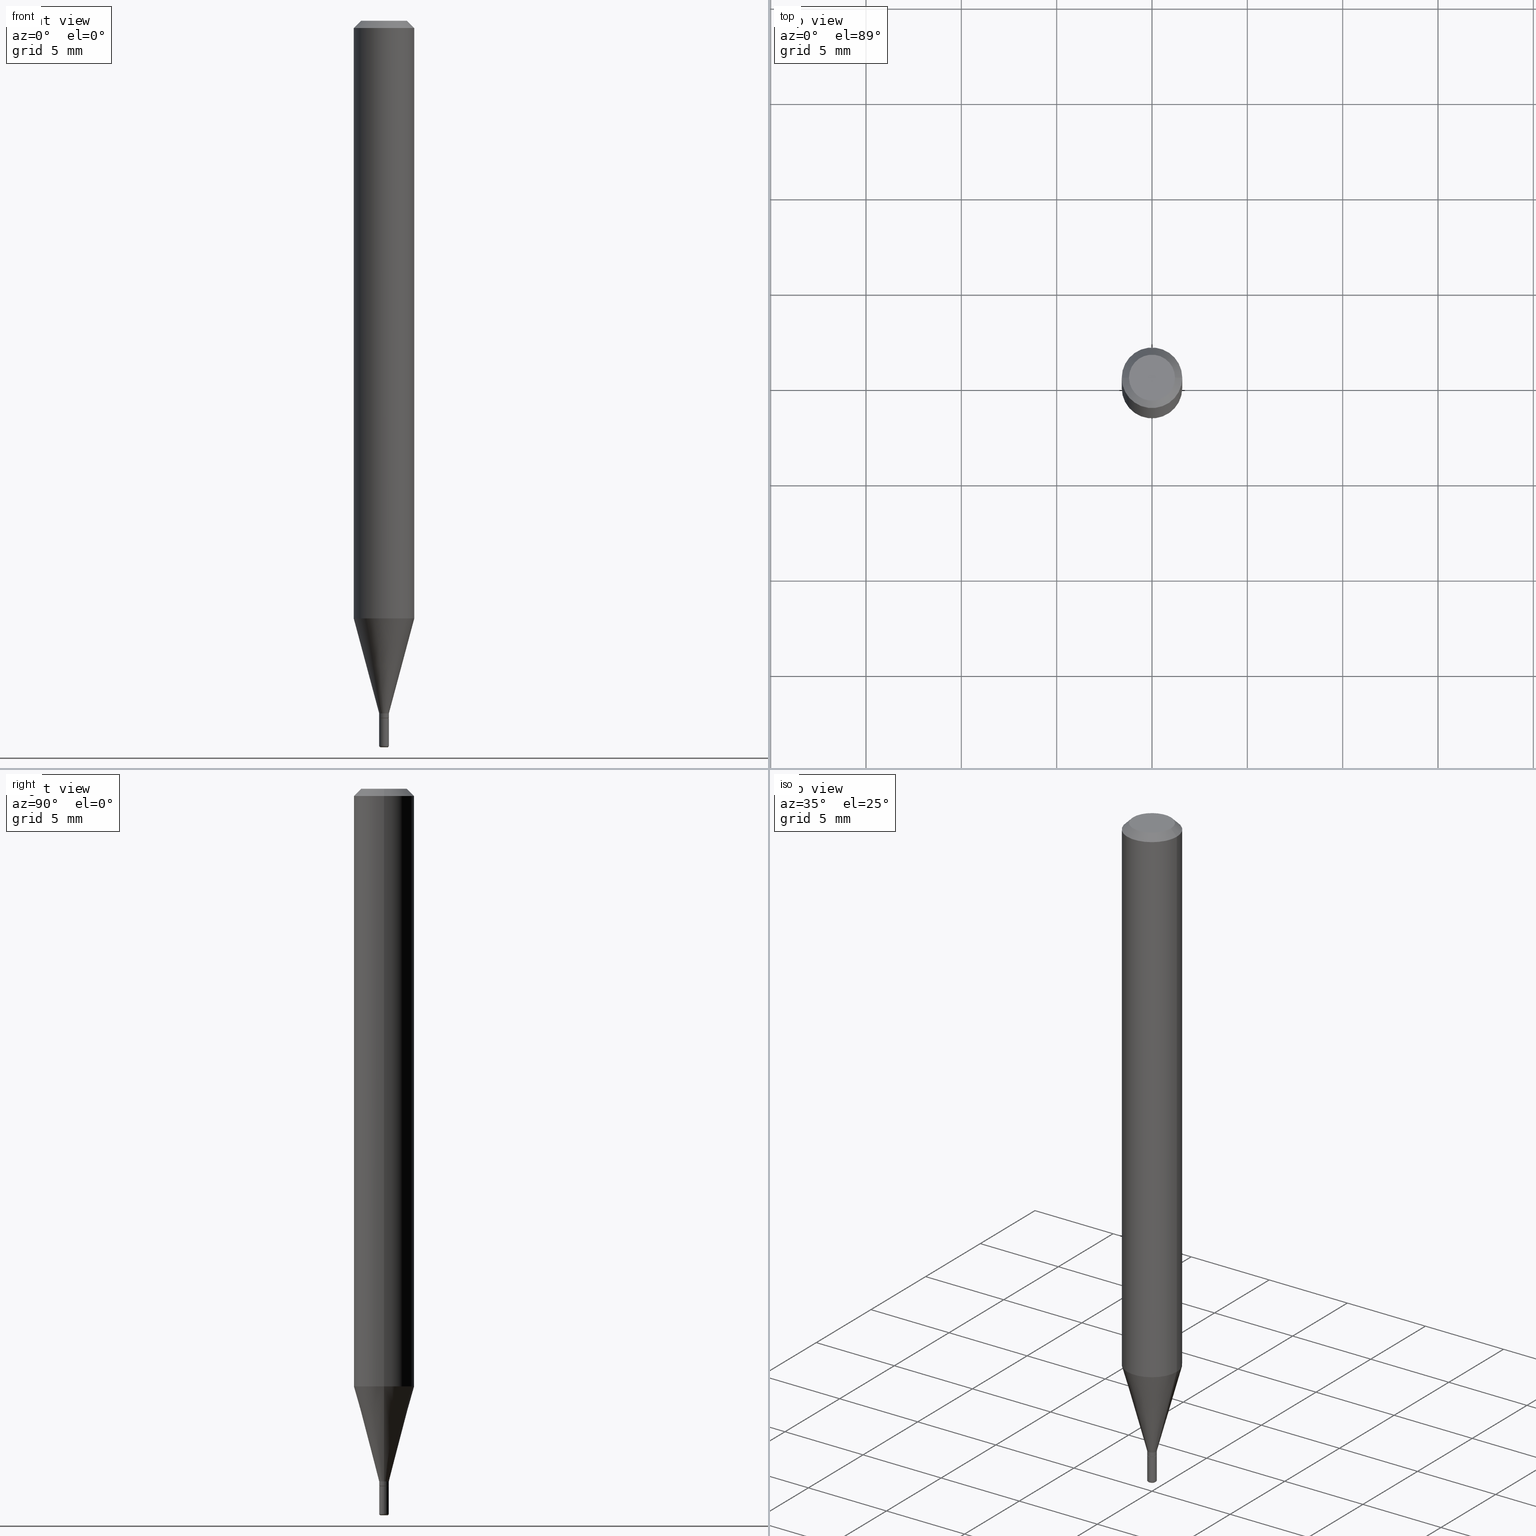
[diagram: canonical four-view strip — front | top / right | iso, engineering-drawing reading convention]
A machine part, canonical four-view strip (front | top / right | iso — engineering-drawing reading convention). The complete STEP part file that produces these views, byte-faithful:
ISO-10303-21;
HEADER;
FILE_DESCRIPTION (( 'STEP AP203' ),
    '1' );
FILE_NAME ('08644.STEP',
    '2024-02-29T20:08:30',
    ( '' ),
    ( '' ),
    'SwSTEP 2.0',
    'SolidWorks 2023',
    '' );
FILE_SCHEMA (( 'CONFIG_CONTROL_DESIGN' ));
ENDSEC;

DATA;
#1 = CARTESIAN_POINT ( 'NONE',  ( 0.06250000000000001388, -4.745158230013424344E-15, -1.234067332602633682 ) ) ;
#2 = CALENDAR_DATE ( 2024, 29, 2 ) ;
#3 = CYLINDRICAL_SURFACE ( 'NONE', #47, 0.009999999999999982861 ) ;
#4 = DIRECTION ( 'NONE',  ( -2.445468806185136597E-29, 3.491481338843145583E-15, 1.000000000000000000 ) ) ;
#5 = AXIS2_PLACEMENT_3D ( 'NONE', #376, #278, #513 ) ;
#6 = ORIENTED_EDGE ( 'NONE', *, *, #403, .T. ) ;
#7 = CC_DESIGN_PERSON_AND_ORGANIZATION_ASSIGNMENT ( #297, #101, ( #53 ) ) ;
#8 = FACE_OUTER_BOUND ( 'NONE', #497, .T. ) ;
#9 = PERSON_AND_ORGANIZATION ( #19, #449 ) ;
#10 = APPLICATION_CONTEXT ( 'configuration controlled 3d designs of mechanical parts and assemblies' ) ;
#11 = ADVANCED_FACE ( 'NONE', ( #314 ), #491, .T. ) ;
#12 = AXIS2_PLACEMENT_3D ( 'NONE', #499, #380, #106 ) ;
#13 = APPROVAL_DATE_TIME ( #253, #518 ) ;
#14 = PERSON_AND_ORGANIZATION_ROLE ( 'classification_officer' ) ;
#15 = ADVANCED_FACE ( 'NONE', ( #144 ), #205, .T. ) ;
#16 = DIRECTION ( 'NONE',  ( 0.2588190451025205729, 1.565188264969627490E-15, 0.9659258262890682012 ) ) ;
#17 = CLOSED_SHELL ( 'NONE', ( #25, #15, #480, #133, #32, #43, #460, #510, #324, #139, #265, #366 ) ) ;
#18 = ORIENTED_EDGE ( 'NONE', *, *, #337, .T. ) ;
#19 = PERSON ( 'UNSPECIFIED', 'UNSPECIFIED', 'UNSPECIFIED', ('UNSPECIFIED'), ('UNSPECIFIED'), ('UNSPECIFIED') ) ;
#20 = LINE ( 'NONE', #457, #289 ) ;
#21 = EDGE_CURVE ( 'NONE', #242, #35, #110, .T. ) ;
#22 = DIRECTION ( 'NONE',  ( 1.000000000000000000, -6.982962677686332186E-15, 0.000000000000000000 ) ) ;
#23 =( CONVERSION_BASED_UNIT ( 'INCH', #427 ) LENGTH_UNIT ( ) NAMED_UNIT ( #504 ) );
#24 = ORIENTED_EDGE ( 'NONE', *, *, #215, .F. ) ;
#25 = ADVANCED_FACE ( 'NONE', ( #388 ), #426, .T. ) ;
#26 = CIRCLE ( 'NONE', #498, 0.06250000000000000000 ) ;
#27 = FACE_OUTER_BOUND ( 'NONE', #358, .T. ) ;
#28 = DIRECTION ( 'NONE',  ( -0.7071067811864260033, 7.493145998869915554E-15, 0.7071067811866689201 ) ) ;
#29 = VERTEX_POINT ( 'NONE', #73 ) ;
#30 = DIRECTION ( 'NONE',  ( -2.445468806185136597E-29, 3.491481338843145583E-15, 1.000000000000000000 ) ) ;
#31 = VERTEX_POINT ( 'NONE', #418 ) ;
#32 = ADVANCED_FACE ( 'NONE', ( #238 ), #448, .T. ) ;
#33 = CARTESIAN_POINT ( 'NONE',  ( 3.668203209277704895E-29, -5.237222008264718177E-15, -1.500000000000000222 ) ) ;
#34 = LINE ( 'NONE', #515, #180 ) ;
#35 = VERTEX_POINT ( 'NONE', #508 ) ;
#36 = AXIS2_PLACEMENT_3D ( 'NONE', #350, #484, #125 ) ;
#37 = CIRCLE ( 'NONE', #12, 0.009999999999999981126 ) ;
#38 = DIRECTION ( 'NONE',  ( -0.2588190451025205729, 5.211531920934544731E-15, 0.9659258262890682012 ) ) ;
#39 = CIRCLE ( 'NONE', #237, 0.06250000000000000000 ) ;
#40 = ORIENTED_EDGE ( 'NONE', *, *, #21, .T. ) ;
#41 = LINE ( 'NONE', #159, #46 ) ;
#42 = EDGE_LOOP ( 'NONE', ( #63, #6 ) ) ;
#43 = ADVANCED_FACE ( 'NONE', ( #225 ), #371, .T. ) ;
#44 = EDGE_CURVE ( 'NONE', #503, #420, #462, .T. ) ;
#45 = PLANE ( 'NONE',  #382 ) ;
#46 = VECTOR ( 'NONE', #390, 39.37007874015748143 ) ;
#47 = AXIS2_PLACEMENT_3D ( 'NONE', #357, #115, #438 ) ;
#48 = APPROVAL_ROLE ( '' ) ;
#49 = EDGE_CURVE ( 'NONE', #503, #199, #132, .T. ) ;
#50 = APPROVAL_DATE_TIME ( #417, #283 ) ;
#51 = DIRECTION ( 'NONE',  ( 1.000000000000000000, -6.982962677686266711E-15, 4.876176775795935793E-29 ) ) ;
#52 = CLOSED_SHELL ( 'NONE', ( #221, #197, #98, #173, #11, #121 ) ) ;
#53 = PRODUCT_DEFINITION_FORMATION_WITH_SPECIFIED_SOURCE ( 'ANY', '', #162, .NOT_KNOWN. ) ;
#54 = CALENDAR_DATE ( 2024, 29, 2 ) ;
#55 = DIRECTION ( 'NONE',  ( -2.445468806185136597E-29, 3.491481338843145583E-15, 1.000000000000000000 ) ) ;
#56 = DIRECTION ( 'NONE',  ( 1.000000000000000000, -6.982962677686266711E-15, 4.876176775795935793E-29 ) ) ;
#57 = LINE ( 'NONE', #370, #363 ) ;
#58 = LINE ( 'NONE', #220, #213 ) ;
#59 = DIRECTION ( 'NONE',  ( -2.445468806185136877E-29, 3.491481338843145188E-15, 1.000000000000000000 ) ) ;
#60 = ORIENTED_EDGE ( 'NONE', *, *, #211, .F. ) ;
#61 = DIRECTION ( 'NONE',  ( 1.000000000000000000, -6.982962677686266711E-15, 4.852736867747365086E-29 ) ) ;
#62 = AXIS2_PLACEMENT_3D ( 'NONE', #114, #30, #317 ) ;
#63 = ORIENTED_EDGE ( 'NONE', *, *, #271, .T. ) ;
#64 = CARTESIAN_POINT ( 'NONE',  ( -0.009999999999999981126, -4.393198946888829488E-15, -1.429999999999999938 ) ) ;
#65 = DIRECTION ( 'NONE',  ( 1.000000000000000000, -6.982962677686267499E-15, 4.876176775795936353E-29 ) ) ;
#66 = CARTESIAN_POINT ( 'NONE',  ( 3.668203209277704895E-29, -5.237222008264718177E-15, -1.500000000000000222 ) ) ;
#67 = CARTESIAN_POINT ( 'NONE',  ( 3.497020392844745759E-29, -4.992818314545698211E-15, -1.429999999999999938 ) ) ;
#68 = FACE_OUTER_BOUND ( 'NONE', #234, .T. ) ;
#69 = ORIENTED_EDGE ( 'NONE', *, *, #393, .T. ) ;
#70 = ORIENTED_EDGE ( 'NONE', *, *, #178, .F. ) ;
#71 = VECTOR ( 'NONE', #188, 39.37007874015748143 ) ;
#72 = AXIS2_PLACEMENT_3D ( 'NONE', #282, #245, #56 ) ;
#73 = CARTESIAN_POINT ( 'NONE',  ( -0.009999999999999970718, -5.056186072515150215E-15, -1.497000000000000108 ) ) ;
#74 = CARTESIAN_POINT ( 'NONE',  ( 3.660866802859150328E-29, -5.226747564248189155E-15, -1.497000000000000108 ) ) ;
#75 = ORIENTED_EDGE ( 'NONE', *, *, #302, .T. ) ;
#76 = DIRECTION ( 'NONE',  ( -2.445468806185136597E-29, 3.491481338843145583E-15, 1.000000000000000000 ) ) ;
#77 = DIRECTION ( 'NONE',  ( -2.445468806185136597E-29, 3.491481338843145583E-15, 1.000000000000000000 ) ) ;
#78 = ORIENTED_EDGE ( 'NONE', *, *, #269, .F. ) ;
#79 = DIRECTION ( 'NONE',  ( -2.445468806185136877E-29, 3.491481338843145188E-15, 1.000000000000000000 ) ) ;
#80 = PRODUCT_DEFINITION_SHAPE ( 'NONE', 'NONE',  #379 ) ;
#81 = DIRECTION ( 'NONE',  ( -1.000000000000000000, 6.982962677686265922E-15, -4.876176775795935793E-29 ) ) ;
#82 = VERTEX_POINT ( 'NONE', #481 ) ;
#83 = CARTESIAN_POINT ( 'NONE',  ( -0.009999999999999982861, 7.105427357600989681E-17, -4.918935090254897514E-31 ) ) ;
#84 = CIRCLE ( 'NONE', #62, 0.009499999999999984152 ) ;
#85 = DIRECTION ( 'NONE',  ( 2.438088387897960049E-29, -3.491481338843145188E-15, -1.000000000000000000 ) ) ;
#86 = EDGE_CURVE ( 'NONE', #29, #199, #414, .T. ) ;
#87 = PLANE ( 'NONE',  #475 ) ;
#88 = PERSON_AND_ORGANIZATION_ROLE ( 'creator' ) ;
#89 = CC_DESIGN_PERSON_AND_ORGANIZATION_ASSIGNMENT ( #95, #14, ( #327 ) ) ;
#90 = UNCERTAINTY_MEASURE_WITH_UNIT (LENGTH_MEASURE( 1.000000000000000082E-05 ), #23, 'distance_accuracy_value', 'NONE');
#91 = CONICAL_SURFACE ( 'NONE', #295, 0.009499999999999984152, 0.7853981633972765275 ) ;
#92 = AXIS2_PLACEMENT_3D ( 'NONE', #389, #392, #166 ) ;
#93 = VERTEX_POINT ( 'NONE', #136 ) ;
#94 = COORDINATED_UNIVERSAL_TIME_OFFSET ( 5, 0, .BEHIND. ) ;
#95 = PERSON_AND_ORGANIZATION ( #19, #449 ) ;
#96 = ORIENTED_EDGE ( 'NONE', *, *, #260, .F. ) ;
#97 = DIRECTION ( 'NONE',  ( 1.000000000000000000, -6.982962677686246989E-15, 0.000000000000000000 ) ) ;
#98 = ADVANCED_FACE ( 'NONE', ( #330 ), #45, .F. ) ;
#99 = EDGE_LOOP ( 'NONE', ( #116, #203, #351, #485 ) ) ;
#100 = CARTESIAN_POINT ( 'NONE',  ( -6.680649051745406845E-45, 9.538196290434862081E-31, 2.731847993664263218E-16 ) ) ;
#101 = PERSON_AND_ORGANIZATION_ROLE ( 'design_supplier' ) ;
#102 = DIRECTION ( 'NONE',  ( 0.7071067811864260033, -2.468850131080984628E-15, 0.7071067811866689201 ) ) ;
#103 = CARTESIAN_POINT ( 'NONE',  ( -0.06250000000000000000, 3.840629472727455270E-16, -0.01499999999999970281 ) ) ;
#104 = APPROVAL ( #505, 'UNSPECIFIED' ) ;
#105 = ORIENTED_EDGE ( 'NONE', *, *, #231, .F. ) ;
#106 = DIRECTION ( 'NONE',  ( 1.000000000000000000, -6.982962677686249356E-15, 0.000000000000000000 ) ) ;
#107 = CIRCLE ( 'NONE', #250, 0.009999999999999984596 ) ;
#108 = CC_DESIGN_APPROVAL ( #518, ( #327 ) ) ;
#109 = CALENDAR_DATE ( 2024, 29, 2 ) ;
#110 = LINE ( 'NONE', #158, #255 ) ;
#111 = LINE ( 'NONE', #459, #71 ) ;
#112 = ORIENTED_EDGE ( 'NONE', *, *, #413, .T. ) ;
#113 = DIRECTION ( 'NONE',  ( -2.445468806185136597E-29, 3.491481338843145583E-15, 1.000000000000000000 ) ) ;
#114 = CARTESIAN_POINT ( 'NONE',  ( 3.521475080906597305E-29, -5.027733127934130649E-15, -1.440000000000000169 ) ) ;
#115 = DIRECTION ( 'NONE',  ( -2.445468806185136597E-29, 3.491481338843145583E-15, 1.000000000000000000 ) ) ;
#116 = ORIENTED_EDGE ( 'NONE', *, *, #501, .T. ) ;
#117 = ORIENTED_EDGE ( 'NONE', *, *, #21, .F. ) ;
#118 = COORDINATED_UNIVERSAL_TIME_OFFSET ( 5, 0, .BEHIND. ) ;
#119 = CARTESIAN_POINT ( 'NONE',  ( 3.497020392844745759E-29, -4.992818314545698211E-15, -1.429999999999999938 ) ) ;
#120 = ORIENTED_EDGE ( 'NONE', *, *, #424, .F. ) ;
#121 = ADVANCED_FACE ( 'NONE', ( #395 ), #87, .F. ) ;
#122 = CIRCLE ( 'NONE', #487, 0.002999999999999970572 ) ;
#123 = VECTOR ( 'NONE', #128, 39.37007874015748143 ) ;
#124 = DIRECTION ( 'NONE',  ( 1.000000000000000000, -6.982962677686246989E-15, 0.000000000000000000 ) ) ;
#125 = DIRECTION ( 'NONE',  ( 1.000000000000000000, -6.982962677686266711E-15, 4.852736867747365086E-29 ) ) ;
#126 = ORIENTED_EDGE ( 'NONE', *, *, #169, .T. ) ;
#127 = DIRECTION ( 'NONE',  ( -2.445468806185136597E-29, 3.491481338843145583E-15, 1.000000000000000000 ) ) ;
#128 = DIRECTION ( 'NONE',  ( 0.7071067811865479058, -7.319954787623257623E-15, -0.7071067811865471286 ) ) ;
#129 = ORIENTED_EDGE ( 'NONE', *, *, #369, .T. ) ;
#130 =( NAMED_UNIT ( * ) PLANE_ANGLE_UNIT ( ) SI_UNIT ( $, .RADIAN. ) );
#131 = CARTESIAN_POINT ( 'NONE',  ( 3.017873166611838401E-29, -4.308723062658033463E-15, -1.234067332602633682 ) ) ;
#132 = CIRCLE ( 'NONE', #299, 0.002999999999999970572 ) ;
#133 = ADVANCED_FACE ( 'NONE', ( #365 ), #458, .T. ) ;
#134 = CARTESIAN_POINT ( 'NONE',  ( 3.521475080906597305E-29, -5.027733127934130649E-15, -1.440000000000000169 ) ) ;
#135 = DATE_AND_TIME ( #488, #296 ) ;
#136 = CARTESIAN_POINT ( 'NONE',  ( -0.04750000000000000749, 3.578768372314221353E-16, 2.731847993664239060E-16 ) ) ;
#137 = AXIS2_PLACEMENT_3D ( 'NONE', #33, #183, #22 ) ;
#138 =( GEOMETRIC_REPRESENTATION_CONTEXT ( 3 ) GLOBAL_UNCERTAINTY_ASSIGNED_CONTEXT ( ( #90 ) ) GLOBAL_UNIT_ASSIGNED_CONTEXT ( ( #23, #130, #243 ) ) REPRESENTATION_CONTEXT ( 'NONE', 'WORKASPACE' ) );
#139 = ADVANCED_FACE ( 'NONE', ( #8 ), #248, .F. ) ;
#140 = CYLINDRICAL_SURFACE ( 'NONE', #425, 0.009999999999999984596 ) ;
#141 = CC_DESIGN_SECURITY_CLASSIFICATION ( #327, ( #53 ) ) ;
#142 = VERTEX_POINT ( 'NONE', #304 ) ;
#143 = LINE ( 'NONE', #103, #217 ) ;
#144 = FACE_OUTER_BOUND ( 'NONE', #423, .T. ) ;
#145 = FACE_OUTER_BOUND ( 'NONE', #468, .T. ) ;
#146 = ORIENTED_EDGE ( 'NONE', *, *, #86, .T. ) ;
#147 = CIRCLE ( 'NONE', #367, 0.009999999999999970718 ) ;
#148 = AXIS2_PLACEMENT_3D ( 'NONE', #226, #377, #419 ) ;
#149 = CARTESIAN_POINT ( 'NONE',  ( 0.000000000000000000, 0.000000000000000000, 0.000000000000000000 ) ) ;
#150 = DIRECTION ( 'NONE',  ( -2.445468806185136597E-29, 3.491481338843145583E-15, 1.000000000000000000 ) ) ;
#151 = ORIENTED_EDGE ( 'NONE', *, *, #153, .T. ) ;
#152 = LINE ( 'NONE', #83, #346 ) ;
#153 = EDGE_CURVE ( 'NONE', #310, #214, #184, .T. ) ;
#154 = ORIENTED_EDGE ( 'NONE', *, *, #294, .F. ) ;
#155 = APPROVAL_ROLE ( '' ) ;
#156 = FACE_OUTER_BOUND ( 'NONE', #42, .T. ) ;
#157 = ORIENTED_EDGE ( 'NONE', *, *, #445, .F. ) ;
#158 = CARTESIAN_POINT ( 'NONE',  ( 0.06250000000000000000, -4.364351673553916694E-16, 3.047610484872459871E-30 ) ) ;
#159 = CARTESIAN_POINT ( 'NONE',  ( 0.009999999999999982861, -6.982962677686255864E-17, 4.876176775795927210E-31 ) ) ;
#160 = ORIENTED_EDGE ( 'NONE', *, *, #271, .F. ) ;
#161 = AXIS2_PLACEMENT_3D ( 'NONE', #514, #353, #124 ) ;
#162 = PRODUCT ( '08644', '08644', '', ( #232 ) ) ;
#163 = ORIENTED_EDGE ( 'NONE', *, *, #360, .F. ) ;
#164 = DIRECTION ( 'NONE',  ( 1.000000000000000000, -6.982962677686256455E-15, 4.883557194083109538E-29 ) ) ;
#165 = ORIENTED_EDGE ( 'NONE', *, *, #153, .F. ) ;
#166 = DIRECTION ( 'NONE',  ( 1.000000000000000000, 0.000000000000000000, 0.000000000000000000 ) ) ;
#167 = DIRECTION ( 'NONE',  ( -2.445468806185136597E-29, 3.491481338843145583E-15, 1.000000000000000000 ) ) ;
#168 = CC_DESIGN_PERSON_AND_ORGANIZATION_ASSIGNMENT ( #490, #88, ( #379 ) ) ;
#169 = EDGE_CURVE ( 'NONE', #142, #336, #107, .T. ) ;
#170 = DIRECTION ( 'NONE',  ( -2.445468806185136597E-29, 3.491481338843145583E-15, 1.000000000000000000 ) ) ;
#171 = CIRCLE ( 'NONE', #161, 0.009999999999999984596 ) ;
#172 = DESIGN_CONTEXT ( 'detailed design', #193, 'design' ) ;
#173 = ADVANCED_FACE ( 'NONE', ( #145 ), #256, .T. ) ;
#174 = EDGE_LOOP ( 'NONE', ( #208, #126, #18, #474 ) ) ;
#175 = PERSON_AND_ORGANIZATION ( #19, #449 ) ;
#176 = AXIS2_PLACEMENT_3D ( 'NONE', #149, #113, #312 ) ;
#177 = APPROVAL_PERSON_ORGANIZATION ( #447, #283, #48 ) ;
#178 = EDGE_CURVE ( 'NONE', #199, #31, #111, .T. ) ;
#179 = DATE_AND_TIME ( #402, #456 ) ;
#180 = VECTOR ( 'NONE', #198, 39.37007874015748143 ) ;
#181 = CARTESIAN_POINT ( 'NONE',  ( 0.009499999999999984152, -5.094071273372150151E-15, -1.440000000000000169 ) ) ;
#182 = AXIS2_PLACEMENT_3D ( 'NONE', #100, #185, #61 ) ;
#183 = DIRECTION ( 'NONE',  ( -2.445468806185136597E-29, 3.491481338843145583E-15, 1.000000000000000000 ) ) ;
#184 = LINE ( 'NONE', #228, #340 ) ;
#185 = DIRECTION ( 'NONE',  ( -2.445468806185136597E-29, 3.491481338843145583E-15, 1.000000000000000000 ) ) ;
#186 = CARTESIAN_POINT ( 'NONE',  ( 3.660866802859150328E-29, -5.226747564248189155E-15, -1.497000000000000108 ) ) ;
#187 = PERSON_AND_ORGANIZATION_ROLE ( 'design_owner' ) ;
#188 = DIRECTION ( 'NONE',  ( -2.445468806185136877E-29, 3.491481338843145188E-15, 1.000000000000000000 ) ) ;
#189 = ORIENTED_EDGE ( 'NONE', *, *, #260, .T. ) ;
#190 = DIRECTION ( 'NONE',  ( -2.445468806185136597E-29, 3.491481338843145583E-15, 1.000000000000000000 ) ) ;
#191 = AXIS2_PLACEMENT_3D ( 'NONE', #119, #167, #386 ) ;
#192 = CC_DESIGN_APPROVAL ( #283, ( #53 ) ) ;
#193 = APPLICATION_CONTEXT ( 'configuration controlled 3d designs of mechanical parts and assemblies' ) ;
#194 = DIRECTION ( 'NONE',  ( 1.000000000000000000, -6.982962677686249356E-15, 0.000000000000000000 ) ) ;
#195 = CARTESIAN_POINT ( 'NONE',  ( 3.521475080906597305E-29, -5.027733127934130649E-15, -1.440000000000000169 ) ) ;
#196 = ORIENTED_EDGE ( 'NONE', *, *, #215, .T. ) ;
#197 = ADVANCED_FACE ( 'NONE', ( #68 ), #140, .T. ) ;
#198 = DIRECTION ( 'NONE',  ( -2.445468806185136877E-29, 3.491481338843145188E-15, 1.000000000000000000 ) ) ;
#199 = VERTEX_POINT ( 'NONE', #301 ) ;
#200 = CYLINDRICAL_SURFACE ( 'NONE', #72, 0.06250000000000000000 ) ;
#201 = DIRECTION ( 'NONE',  ( -6.982962677686266711E-15, -1.000000000000000000, 3.491481338843145583E-15 ) ) ;
#202 = FACE_OUTER_BOUND ( 'NONE', #174, .T. ) ;
#203 = ORIENTED_EDGE ( 'NONE', *, *, #452, .T. ) ;
#204 = CIRCLE ( 'NONE', #36, 0.04750000000000000749 ) ;
#205 = CONICAL_SURFACE ( 'NONE', #334, 0.009499999999999984152, 0.7853981633972765275 ) ;
#206 = CIRCLE ( 'NONE', #372, 0.007000000000000001013 ) ;
#207 = CARTESIAN_POINT ( 'NONE',  ( 3.521475080906597305E-29, -5.027733127934130649E-15, -1.440000000000000169 ) ) ;
#208 = ORIENTED_EDGE ( 'NONE', *, *, #452, .F. ) ;
#209 = CARTESIAN_POINT ( 'NONE',  ( 0.009999999999999981126, -5.062647941322559931E-15, -1.429999999999999938 ) ) ;
#210 = CARTESIAN_POINT ( 'NONE',  ( 3.017873166611838401E-29, -4.308723062658033463E-15, -1.234067332602633682 ) ) ;
#211 = EDGE_CURVE ( 'NONE', #412, #336, #20, .T. ) ;
#212 = VECTOR ( 'NONE', #28, 39.37007874015748854 ) ;
#213 = VECTOR ( 'NONE', #16, 39.37007874015748854 ) ;
#214 = VERTEX_POINT ( 'NONE', #409 ) ;
#215 = EDGE_CURVE ( 'NONE', #465, #310, #57, .T. ) ;
#216 = AXIS2_PLACEMENT_3D ( 'NONE', #433, #85, #482 ) ;
#217 = VECTOR ( 'NONE', #348, 39.37007874015748143 ) ;
#218 = ORIENTED_EDGE ( 'NONE', *, *, #435, .F. ) ;
#219 = FACE_OUTER_BOUND ( 'NONE', #430, .T. ) ;
#220 = CARTESIAN_POINT ( 'NONE',  ( 0.009999999999999981126, -5.062647941322559931E-15, -1.429999999999999938 ) ) ;
#221 = ADVANCED_FACE ( 'NONE', ( #396 ), #492, .T. ) ;
#222 = AXIS2_PLACEMENT_3D ( 'NONE', #67, #240, #194 ) ;
#223 = DIRECTION ( 'NONE',  ( -2.445468806185136597E-29, 3.491481338843145583E-15, 1.000000000000000000 ) ) ;
#224 = LOCAL_TIME ( 15, 8, 30.00000000000000000, #118 ) ;
#225 = FACE_OUTER_BOUND ( 'NONE', #483, .T. ) ;
#226 = CARTESIAN_POINT ( 'NONE',  ( 3.668203209277632395E-31, -5.237222008264614861E-17, -0.01499999999999970281 ) ) ;
#227 = PERSON_AND_ORGANIZATION ( #19, #449 ) ;
#228 = CARTESIAN_POINT ( 'NONE',  ( -0.06250000000000000000, 4.440892098500626162E-16, -3.074334431409316114E-30 ) ) ;
#229 = ORIENTED_EDGE ( 'NONE', *, *, #269, .T. ) ;
#230 = DIRECTION ( 'NONE',  ( 1.000000000000000000, -6.982962677686235945E-15, 0.000000000000000000 ) ) ;
#231 = EDGE_CURVE ( 'NONE', #287, #142, #315, .T. ) ;
#232 = MECHANICAL_CONTEXT ( 'NONE', #10, 'mechanical' ) ;
#233 = DIRECTION ( 'NONE',  ( -1.000000000000000000, 7.105427357600930861E-15, 0.000000000000000000 ) ) ;
#234 = EDGE_LOOP ( 'NONE', ( #397, #421, #311, #70 ) ) ;
#235 = AXIS2_PLACEMENT_3D ( 'NONE', #398, #267, #338 ) ;
#236 = CC_DESIGN_DATE_AND_TIME_ASSIGNMENT ( #179, #493, ( #327 ) ) ;
#237 = AXIS2_PLACEMENT_3D ( 'NONE', #303, #223, #305 ) ;
#238 = FACE_OUTER_BOUND ( 'NONE', #322, .T. ) ;
#239 = ORIENTED_EDGE ( 'NONE', *, *, #44, .F. ) ;
#240 = DIRECTION ( 'NONE',  ( -2.445468806185136597E-29, 3.491481338843145583E-15, 1.000000000000000000 ) ) ;
#241 = PLANE ( 'NONE',  #216 ) ;
#242 = VERTEX_POINT ( 'NONE', #1 ) ;
#243 =( NAMED_UNIT ( * ) SI_UNIT ( $, .STERADIAN. ) SOLID_ANGLE_UNIT ( ) );
#244 = ORIENTED_EDGE ( 'NONE', *, *, #360, .T. ) ;
#245 = DIRECTION ( 'NONE',  ( -2.445468806185136597E-29, 3.491481338843145583E-15, 1.000000000000000000 ) ) ;
#246 = AXIS2_PLACEMENT_3D ( 'NONE', #307, #326, #51 ) ;
#247 = DIRECTION ( 'NONE',  ( 1.000000000000000000, -6.982962677686235945E-15, 0.000000000000000000 ) ) ;
#248 = PLANE ( 'NONE',  #235 ) ;
#249 = CARTESIAN_POINT ( 'NONE',  ( 3.582686580359766038E-29, -5.359686688179453325E-15, -1.500000000000000222 ) ) ;
#250 = AXIS2_PLACEMENT_3D ( 'NONE', #375, #342, #97 ) ;
#251 = CIRCLE ( 'NONE', #406, 0.06250000000000000000 ) ;
#252 = APPROVAL_STATUS ( 'not_yet_approved' ) ;
#253 = DATE_AND_TIME ( #54, #264 ) ;
#254 = COORDINATED_UNIVERSAL_TIME_OFFSET ( 5, 0, .BEHIND. ) ;
#255 = VECTOR ( 'NONE', #272, 39.37007874015748143 ) ;
#256 = CYLINDRICAL_SURFACE ( 'NONE', #309, 0.009999999999999984596 ) ;
#257 = EDGE_LOOP ( 'NONE', ( #163, #275, #394, #450 ) ) ;
#258 = CARTESIAN_POINT ( 'NONE',  ( -0.007000000000000001013, -5.171588653716845491E-15, -1.500000000000000222 ) ) ;
#259 = DIRECTION ( 'NONE',  ( -2.445468806185136597E-29, 3.491481338843145583E-15, 1.000000000000000000 ) ) ;
#260 = EDGE_CURVE ( 'NONE', #287, #412, #343, .T. ) ;
#261 = AXIS2_PLACEMENT_3D ( 'NONE', #273, #428, #384 ) ;
#262 = CIRCLE ( 'NONE', #429, 0.06250000000000000000 ) ;
#263 = DIRECTION ( 'NONE',  ( 1.000000000000000000, -6.982962677686266711E-15, 0.000000000000000000 ) ) ;
#264 = LOCAL_TIME ( 15, 8, 30.00000000000000000, #94 ) ;
#265 = ADVANCED_FACE ( 'NONE', ( #354 ), #91, .T. ) ;
#266 = ORIENTED_EDGE ( 'NONE', *, *, #424, .T. ) ;
#267 = DIRECTION ( 'NONE',  ( -2.438088387897960049E-29, 3.491481338843145188E-15, 1.000000000000000000 ) ) ;
#268 = ORIENTED_EDGE ( 'NONE', *, *, #393, .F. ) ;
#269 = EDGE_CURVE ( 'NONE', #310, #242, #26, .T. ) ;
#270 = ORIENTED_EDGE ( 'NONE', *, *, #169, .F. ) ;
#271 = EDGE_CURVE ( 'NONE', #93, #82, #204, .T. ) ;
#272 = DIRECTION ( 'NONE',  ( -2.445468806185136877E-29, 3.491481338843145188E-15, 1.000000000000000000 ) ) ;
#273 = CARTESIAN_POINT ( 'NONE',  ( 3.521475080906597305E-29, -5.027733127934130649E-15, -1.440000000000000169 ) ) ;
#274 = MANIFOLD_SOLID_BREP ( 'Body-Move/Copy2[1]', #52 ) ;
#275 = ORIENTED_EDGE ( 'NONE', *, *, #435, .T. ) ;
#276 = CIRCLE ( 'NONE', #502, 0.01000000000000000021 ) ;
#277 = MANIFOLD_SOLID_BREP ( 'Body-Move/Copy2[2]', #17 ) ;
#278 = DIRECTION ( 'NONE',  ( -2.445468806185136597E-29, 3.491481338843145583E-15, 1.000000000000000000 ) ) ;
#279 = DIRECTION ( 'NONE',  ( 2.445468806185136597E-29, -3.491481338843145583E-15, -1.000000000000000000 ) ) ;
#280 = CARTESIAN_POINT ( 'NONE',  ( -0.06250000000000001388, -3.864633852807970058E-15, -1.234067332602633682 ) ) ;
#281 = VERTEX_POINT ( 'NONE', #209 ) ;
#282 = CARTESIAN_POINT ( 'NONE',  ( 0.000000000000000000, 0.000000000000000000, 0.000000000000000000 ) ) ;
#283 = APPROVAL ( #252, 'UNSPECIFIED' ) ;
#284 = DIRECTION ( 'NONE',  ( 1.000000000000000000, -6.982962677686256455E-15, 0.000000000000000000 ) ) ;
#285 = CARTESIAN_POINT ( 'NONE',  ( 0.007000000000000001013, -5.286102747008522643E-15, -1.500000000000000222 ) ) ;
#286 = DIRECTION ( 'NONE',  ( 1.000000000000000000, -6.982962677686256455E-15, 0.000000000000000000 ) ) ;
#287 = VERTEX_POINT ( 'NONE', #361 ) ;
#288 = CARTESIAN_POINT ( 'NONE',  ( 0.009999999999999984596, -5.095817014041571654E-15, -1.439500000000000002 ) ) ;
#289 = VECTOR ( 'NONE', #102, 39.37007874015748854 ) ;
#290 = CC_DESIGN_APPROVAL ( #104, ( #379 ) ) ;
#291 = CARTESIAN_POINT ( 'NONE',  ( 6.982962677689787249E-17, 0.009999999999994971245, -1.440000000000000169 ) ) ;
#292 = DATE_TIME_ROLE ( 'creation_date' ) ;
#293 = ORIENTED_EDGE ( 'NONE', *, *, #408, .T. ) ;
#294 = EDGE_CURVE ( 'NONE', #29, #385, #34, .T. ) ;
#295 = AXIS2_PLACEMENT_3D ( 'NONE', #195, #323, #477 ) ;
#296 = LOCAL_TIME ( 15, 8, 30.00000000000000000, #329 ) ;
#297 = PERSON_AND_ORGANIZATION ( #19, #449 ) ;
#298 = SHAPE_DEFINITION_REPRESENTATION ( #80, #444 ) ;
#299 = AXIS2_PLACEMENT_3D ( 'NONE', #352, #201, #356 ) ;
#300 = AXIS2_PLACEMENT_3D ( 'NONE', #134, #190, #230 ) ;
#301 = CARTESIAN_POINT ( 'NONE',  ( 0.009999999999999970718, -5.296577191025051665E-15, -1.497000000000000108 ) ) ;
#302 = EDGE_CURVE ( 'NONE', #281, #465, #442, .T. ) ;
#303 = CARTESIAN_POINT ( 'NONE',  ( 3.668203209277632395E-31, -5.237222008264614861E-17, -0.01499999999999970281 ) ) ;
#304 = CARTESIAN_POINT ( 'NONE',  ( -0.009999999999999984596, -4.954933113688698275E-15, -1.439500000000000002 ) ) ;
#305 = DIRECTION ( 'NONE',  ( 1.000000000000000000, -6.982962677686266711E-15, 0.000000000000000000 ) ) ;
#306 = ORIENTED_EDGE ( 'NONE', *, *, #369, .F. ) ;
#307 = CARTESIAN_POINT ( 'NONE',  ( 0.000000000000000000, 0.000000000000000000, 0.000000000000000000 ) ) ;
#308 = EDGE_CURVE ( 'NONE', #199, #29, #147, .T. ) ;
#309 = AXIS2_PLACEMENT_3D ( 'NONE', #464, #150, #65 ) ;
#310 = VERTEX_POINT ( 'NONE', #280 ) ;
#311 = ORIENTED_EDGE ( 'NONE', *, *, #328, .F. ) ;
#312 = DIRECTION ( 'NONE',  ( 1.000000000000000000, -6.982962677686267499E-15, 4.876176775795935793E-29 ) ) ;
#313 = ORIENTED_EDGE ( 'NONE', *, *, #308, .F. ) ;
#314 = FACE_OUTER_BOUND ( 'NONE', #257, .T. ) ;
#315 = LINE ( 'NONE', #506, #212 ) ;
#316 = EDGE_LOOP ( 'NONE', ( #105, #189, #507, #270 ) ) ;
#317 = DIRECTION ( 'NONE',  ( 1.000000000000000000, -6.982962677686293532E-15, 0.000000000000000000 ) ) ;
#318 = DIRECTION ( 'NONE',  ( -2.445468806185136597E-29, 3.491481338843145583E-15, 1.000000000000000000 ) ) ;
#319 = ORIENTED_EDGE ( 'NONE', *, *, #373, .F. ) ;
#320 = CARTESIAN_POINT ( 'NONE',  ( 3.668203209277632395E-31, -5.237222008264614861E-17, -0.01499999999999970281 ) ) ;
#321 = LINE ( 'NONE', #422, #123 ) ;
#322 = EDGE_LOOP ( 'NONE', ( #75, #196, #319, #157 ) ) ;
#323 = DIRECTION ( 'NONE',  ( -2.445468806185136597E-29, 3.491481338843145583E-15, 1.000000000000000000 ) ) ;
#324 = ADVANCED_FACE ( 'NONE', ( #156 ), #241, .F. ) ;
#325 = APPROVAL_DATE_TIME ( #331, #104 ) ;
#326 = DIRECTION ( 'NONE',  ( -2.445468806185136597E-29, 3.491481338843145583E-15, 1.000000000000000000 ) ) ;
#327 = SECURITY_CLASSIFICATION ( '', '', #333 ) ;
#328 = EDGE_CURVE ( 'NONE', #31, #385, #276, .T. ) ;
#329 = COORDINATED_UNIVERSAL_TIME_OFFSET ( 5, 0, .BEHIND. ) ;
#330 = FACE_OUTER_BOUND ( 'NONE', #454, .T. ) ;
#331 = DATE_AND_TIME ( #2, #224 ) ;
#332 = ORIENTED_EDGE ( 'NONE', *, *, #373, .T. ) ;
#333 = SECURITY_CLASSIFICATION_LEVEL ( 'unclassified' ) ;
#334 = AXIS2_PLACEMENT_3D ( 'NONE', #470, #476, #466 ) ;
#335 = AXIS2_PLACEMENT_3D ( 'NONE', #320, #279, #437 ) ;
#336 = VERTEX_POINT ( 'NONE', #288 ) ;
#337 = EDGE_CURVE ( 'NONE', #336, #281, #41, .T. ) ;
#338 = DIRECTION ( 'NONE',  ( 1.000000000000000000, -6.982962677686265922E-15, 4.876176775795935793E-29 ) ) ;
#339 = CARTESIAN_POINT ( 'NONE',  ( 3.668203209277632395E-31, -5.237222008264614861E-17, -0.01499999999999970281 ) ) ;
#340 = VECTOR ( 'NONE', #59, 39.37007874015748143 ) ;
#341 = CIRCLE ( 'NONE', #300, 0.01000000000000000021 ) ;
#342 = DIRECTION ( 'NONE',  ( -2.445468806185136597E-29, 3.491481338843145583E-15, 1.000000000000000000 ) ) ;
#343 = CIRCLE ( 'NONE', #261, 0.009499999999999984152 ) ;
#344 = DIRECTION ( 'NONE',  ( 1.000000000000000000, -6.982962677686249356E-15, 0.000000000000000000 ) ) ;
#345 = APPLICATION_PROTOCOL_DEFINITION ( 'international standard', 'config_control_design', 1994, #193 ) ;
#346 = VECTOR ( 'NONE', #79, 39.37007874015748143 ) ;
#347 = ORIENTED_EDGE ( 'NONE', *, *, #328, .T. ) ;
#348 = DIRECTION ( 'NONE',  ( -0.7071067811865479058, 2.468850131082261005E-15, -0.7071067811865471286 ) ) ;
#349 = COORDINATED_UNIVERSAL_TIME_OFFSET ( 5, 0, .BEHIND. ) ;
#350 = CARTESIAN_POINT ( 'NONE',  ( -6.680649051745406845E-45, 9.538196290434862081E-31, 2.731847993664263218E-16 ) ) ;
#351 = ORIENTED_EDGE ( 'NONE', *, *, #302, .F. ) ;
#352 = CARTESIAN_POINT ( 'NONE',  ( 0.006999999999999999278, -5.275628302991993622E-15, -1.497000000000000108 ) ) ;
#353 = DIRECTION ( 'NONE',  ( -2.445468806185136597E-29, 3.491481338843145583E-15, 1.000000000000000000 ) ) ;
#354 = FACE_OUTER_BOUND ( 'NONE', #316, .T. ) ;
#355 = EDGE_LOOP ( 'NONE', ( #239, #218 ) ) ;
#356 = DIRECTION ( 'NONE',  ( 1.000000000000000000, -6.982962677686400817E-15, 0.000000000000000000 ) ) ;
#357 = CARTESIAN_POINT ( 'NONE',  ( 0.000000000000000000, 0.000000000000000000, 0.000000000000000000 ) ) ;
#358 = EDGE_LOOP ( 'NONE', ( #306, #160, #112, #293 ) ) ;
#359 = CARTESIAN_POINT ( 'NONE',  ( 3.660866802859150328E-29, -5.226747564248189155E-15, -1.497000000000000108 ) ) ;
#360 = EDGE_CURVE ( 'NONE', #420, #29, #122, .T. ) ;
#361 = CARTESIAN_POINT ( 'NONE',  ( -0.009499999999999984152, -4.957582340862808687E-15, -1.440000000000000169 ) ) ;
#362 = CARTESIAN_POINT ( 'NONE',  ( -0.01000000000000000021, -5.056186072515150215E-15, -1.440000000000000169 ) ) ;
#363 = VECTOR ( 'NONE', #38, 39.37007874015748854 ) ;
#364 = APPROVAL_PERSON_ORGANIZATION ( #383, #104, #155 ) ;
#365 = FACE_OUTER_BOUND ( 'NONE', #511, .T. ) ;
#366 = ADVANCED_FACE ( 'NONE', ( #202 ), #3, .T. ) ;
#367 = AXIS2_PLACEMENT_3D ( 'NONE', #74, #509, #286 ) ;
#368 = CIRCLE ( 'NONE', #182, 0.04750000000000000749 ) ;
#369 = EDGE_CURVE ( 'NONE', #82, #35, #321, .T. ) ;
#370 = CARTESIAN_POINT ( 'NONE',  ( -0.009999999999999981126, -4.921764040969687340E-15, -1.429999999999999938 ) ) ;
#371 = CONICAL_SURFACE ( 'NONE', #222, 0.009999999999999981126, 0.2617993877991492968 ) ;
#372 = AXIS2_PLACEMENT_3D ( 'NONE', #66, #259, #410 ) ;
#373 = EDGE_CURVE ( 'NONE', #242, #310, #251, .T. ) ;
#374 = ORIENTED_EDGE ( 'NONE', *, *, #501, .F. ) ;
#375 = CARTESIAN_POINT ( 'NONE',  ( 3.520252346503503943E-29, -5.025987387264708356E-15, -1.439500000000000002 ) ) ;
#376 = CARTESIAN_POINT ( 'NONE',  ( 3.660866802859150328E-29, -5.226747564248189155E-15, -1.497000000000000108 ) ) ;
#377 = DIRECTION ( 'NONE',  ( 2.445468806185136597E-29, -3.491481338843145583E-15, -1.000000000000000000 ) ) ;
#378 = DIRECTION ( 'NONE',  ( 1.000000000000000000, -6.982962677686267499E-15, 4.876176775795936353E-29 ) ) ;
#379 = PRODUCT_DEFINITION ( 'UNKNOWN', '', #53, #172 ) ;
#380 = DIRECTION ( 'NONE',  ( -2.445468806185136597E-29, 3.491481338843145583E-15, 1.000000000000000000 ) ) ;
#381 = ORIENTED_EDGE ( 'NONE', *, *, #49, .F. ) ;
#382 = AXIS2_PLACEMENT_3D ( 'NONE', #291, #436, #81 ) ;
#383 = PERSON_AND_ORGANIZATION ( #19, #449 ) ;
#384 = DIRECTION ( 'NONE',  ( 1.000000000000000000, -6.982962677686293532E-15, 0.000000000000000000 ) ) ;
#385 = VERTEX_POINT ( 'NONE', #362 ) ;
#386 = DIRECTION ( 'NONE',  ( 1.000000000000000000, -6.982962677686249356E-15, 0.000000000000000000 ) ) ;
#387 = ORIENTED_EDGE ( 'NONE', *, *, #231, .T. ) ;
#388 = FACE_OUTER_BOUND ( 'NONE', #99, .T. ) ;
#389 = CARTESIAN_POINT ( 'NONE',  ( 0.000000000000000000, 0.000000000000000000, 0.000000000000000000 ) ) ;
#390 = DIRECTION ( 'NONE',  ( -2.445468806185136877E-29, 3.491481338843145188E-15, 1.000000000000000000 ) ) ;
#391 = ORIENTED_EDGE ( 'NONE', *, *, #403, .F. ) ;
#392 = DIRECTION ( 'NONE',  ( 0.000000000000000000, 0.000000000000000000, 1.000000000000000000 ) ) ;
#393 = EDGE_CURVE ( 'NONE', #385, #31, #341, .T. ) ;
#394 = ORIENTED_EDGE ( 'NONE', *, *, #49, .T. ) ;
#395 = FACE_OUTER_BOUND ( 'NONE', #355, .T. ) ;
#396 = FACE_OUTER_BOUND ( 'NONE', #443, .T. ) ;
#397 = ORIENTED_EDGE ( 'NONE', *, *, #308, .T. ) ;
#398 = CARTESIAN_POINT ( 'NONE',  ( 3.521475080906597305E-29, -5.027733127934130649E-15, -1.440000000000000169 ) ) ;
#399 = DIRECTION ( 'NONE',  ( 1.000000000000000000, -6.982962677686265922E-15, 4.876176775795935793E-29 ) ) ;
#400 = EDGE_LOOP ( 'NONE', ( #165, #229, #40, #479 ) ) ;
#401 = AXIS2_PLACEMENT_3D ( 'NONE', #359, #77, #164 ) ;
#402 = CALENDAR_DATE ( 2024, 29, 2 ) ;
#403 = EDGE_CURVE ( 'NONE', #82, #93, #368, .T. ) ;
#404 = APPROVAL_ROLE ( '' ) ;
#405 = AXIS2_PLACEMENT_3D ( 'NONE', #431, #76, #344 ) ;
#406 = AXIS2_PLACEMENT_3D ( 'NONE', #210, #4, #486 ) ;
#407 = CARTESIAN_POINT ( 'NONE',  ( 0.000000000000000000, 0.000000000000000000, 0.000000000000000000 ) ) ;
#408 = EDGE_CURVE ( 'NONE', #214, #35, #39, .T. ) ;
#409 = CARTESIAN_POINT ( 'NONE',  ( -0.06250000000000000000, -1.736458431520276866E-15, -0.01499999999999970281 ) ) ;
#410 = DIRECTION ( 'NONE',  ( 1.000000000000000000, -6.982962677686332186E-15, 0.000000000000000000 ) ) ;
#411 = EDGE_CURVE ( 'NONE', #465, #281, #37, .T. ) ;
#412 = VERTEX_POINT ( 'NONE', #181 ) ;
#413 = EDGE_CURVE ( 'NONE', #93, #214, #143, .T. ) ;
#414 = CIRCLE ( 'NONE', #512, 0.009999999999999970718 ) ;
#415 = LOCAL_TIME ( 15, 8, 30.00000000000000000, #349 ) ;
#416 = DIRECTION ( 'NONE',  ( -2.445468806185136597E-29, 3.491481338843145583E-15, 1.000000000000000000 ) ) ;
#417 = DATE_AND_TIME ( #109, #415 ) ;
#418 = CARTESIAN_POINT ( 'NONE',  ( 0.01000000000000000021, -5.097562754710993158E-15, -1.440000000000000169 ) ) ;
#419 = DIRECTION ( 'NONE',  ( -1.000000000000000000, 6.982962677686266711E-15, 0.000000000000000000 ) ) ;
#420 = VERTEX_POINT ( 'NONE', #258 ) ;
#421 = ORIENTED_EDGE ( 'NONE', *, *, #294, .T. ) ;
#422 = CARTESIAN_POINT ( 'NONE',  ( 0.06250000000000000000, -4.811533449433669144E-16, -0.01499999999999970281 ) ) ;
#423 = EDGE_LOOP ( 'NONE', ( #455, #387, #374, #60 ) ) ;
#424 = EDGE_CURVE ( 'NONE', #35, #214, #262, .T. ) ;
#425 = AXIS2_PLACEMENT_3D ( 'NONE', #407, #55, #378 ) ;
#426 = CYLINDRICAL_SURFACE ( 'NONE', #176, 0.009999999999999982861 ) ;
#427 = LENGTH_MEASURE_WITH_UNIT ( LENGTH_MEASURE( 0.02539999999999999897 ), #432 );
#428 = DIRECTION ( 'NONE',  ( -2.445468806185136597E-29, 3.491481338843145583E-15, 1.000000000000000000 ) ) ;
#429 = AXIS2_PLACEMENT_3D ( 'NONE', #339, #416, #263 ) ;
#430 = EDGE_LOOP ( 'NONE', ( #391, #129, #266, #517 ) ) ;
#431 = CARTESIAN_POINT ( 'NONE',  ( 3.497020392844745759E-29, -4.992818314545698211E-15, -1.429999999999999938 ) ) ;
#432 =( LENGTH_UNIT ( ) NAMED_UNIT ( * ) SI_UNIT ( $, .METRE. ) );
#433 = CARTESIAN_POINT ( 'NONE',  ( 3.316907271900976589E-16, 0.04750000000000000749, -2.925296391183627249E-17 ) ) ;
#434 = ORIENTED_EDGE ( 'NONE', *, *, #411, .T. ) ;
#435 = EDGE_CURVE ( 'NONE', #420, #503, #206, .T. ) ;
#436 = DIRECTION ( 'NONE',  ( 2.438088387897960049E-29, -3.491481338843145188E-15, -1.000000000000000000 ) ) ;
#437 = DIRECTION ( 'NONE',  ( -1.000000000000000000, 6.982962677686266711E-15, 0.000000000000000000 ) ) ;
#438 = DIRECTION ( 'NONE',  ( 1.000000000000000000, -6.982962677686267499E-15, 4.876176775795935793E-29 ) ) ;
#439 = ORIENTED_EDGE ( 'NONE', *, *, #445, .T. ) ;
#440 = CC_DESIGN_PERSON_AND_ORGANIZATION_ASSIGNMENT ( #227, #187, ( #162 ) ) ;
#441 = CARTESIAN_POINT ( 'NONE',  ( -0.006999999999999999278, -5.177009572744982887E-15, -1.497000000000000108 ) ) ;
#442 = CIRCLE ( 'NONE', #191, 0.009999999999999981126 ) ;
#443 = EDGE_LOOP ( 'NONE', ( #461, #244, #313, #381 ) ) ;
#444 = ADVANCED_BREP_SHAPE_REPRESENTATION ( '08644', ( #274, #277, #92 ), #138 ) ;
#445 = EDGE_CURVE ( 'NONE', #281, #242, #58, .T. ) ;
#446 = PERSON_AND_ORGANIZATION_ROLE ( 'creator' ) ;
#447 = PERSON_AND_ORGANIZATION ( #19, #449 ) ;
#448 = CONICAL_SURFACE ( 'NONE', #405, 0.009999999999999981126, 0.2617993877991492968 ) ;
#449 = ORGANIZATION ( 'UNSPECIFIED', 'UNSPECIFIED', '' ) ;
#450 = ORIENTED_EDGE ( 'NONE', *, *, #86, .F. ) ;
#451 = APPROVAL_STATUS ( 'not_yet_approved' ) ;
#452 = EDGE_CURVE ( 'NONE', #142, #465, #152, .T. ) ;
#453 = CC_DESIGN_DATE_AND_TIME_ASSIGNMENT ( #135, #292, ( #379 ) ) ;
#454 = EDGE_LOOP ( 'NONE', ( #347, #69 ) ) ;
#455 = ORIENTED_EDGE ( 'NONE', *, *, #495, .T. ) ;
#456 = LOCAL_TIME ( 15, 8, 30.00000000000000000, #254 ) ;
#457 = CARTESIAN_POINT ( 'NONE',  ( 0.009499999999999984152, -5.094071273372150151E-15, -1.440000000000000169 ) ) ;
#458 = CYLINDRICAL_SURFACE ( 'NONE', #246, 0.06250000000000000000 ) ;
#459 = CARTESIAN_POINT ( 'NONE',  ( 0.009999999999999984596, -6.982962677686257096E-17, 4.876176775795928962E-31 ) ) ;
#460 = ADVANCED_FACE ( 'NONE', ( #469 ), #200, .T. ) ;
#461 = ORIENTED_EDGE ( 'NONE', *, *, #44, .T. ) ;
#462 = CIRCLE ( 'NONE', #137, 0.007000000000000001013 ) ;
#463 = ORIENTED_EDGE ( 'NONE', *, *, #178, .T. ) ;
#464 = CARTESIAN_POINT ( 'NONE',  ( 0.000000000000000000, 0.000000000000000000, 0.000000000000000000 ) ) ;
#465 = VERTEX_POINT ( 'NONE', #64 ) ;
#466 = DIRECTION ( 'NONE',  ( 1.000000000000000000, -6.982962677686293532E-15, 0.000000000000000000 ) ) ;
#467 = DIRECTION ( 'NONE',  ( 7.105427357601001859E-15, 1.000000000000000000, -3.491481338843145583E-15 ) ) ;
#468 = EDGE_LOOP ( 'NONE', ( #154, #146, #463, #268 ) ) ;
#469 = FACE_OUTER_BOUND ( 'NONE', #400, .T. ) ;
#470 = CARTESIAN_POINT ( 'NONE',  ( 3.521475080906597305E-29, -5.027733127934130649E-15, -1.440000000000000169 ) ) ;
#471 = APPLICATION_PROTOCOL_DEFINITION ( 'international standard', 'config_control_design', 1994, #10 ) ;
#472 = DIRECTION ( 'NONE',  ( 1.000000000000000000, -6.982962677686262766E-15, 0.000000000000000000 ) ) ;
#473 = CC_DESIGN_PERSON_AND_ORGANIZATION_ASSIGNMENT ( #9, #446, ( #53 ) ) ;
#474 = ORIENTED_EDGE ( 'NONE', *, *, #411, .F. ) ;
#475 = AXIS2_PLACEMENT_3D ( 'NONE', #249, #489, #399 ) ;
#476 = DIRECTION ( 'NONE',  ( -2.445468806185136597E-29, 3.491481338843145583E-15, 1.000000000000000000 ) ) ;
#477 = DIRECTION ( 'NONE',  ( 1.000000000000000000, -6.982962677686293532E-15, 0.000000000000000000 ) ) ;
#478 = CONICAL_SURFACE ( 'NONE', #335, 0.06250000000000000000, 0.7853981633974488341 ) ;
#479 = ORIENTED_EDGE ( 'NONE', *, *, #408, .F. ) ;
#480 = ADVANCED_FACE ( 'NONE', ( #219 ), #516, .T. ) ;
#481 = CARTESIAN_POINT ( 'NONE',  ( 0.04750000000000000749, -4.035134999187568762E-16, 2.731847993664288856E-16 ) ) ;
#482 = DIRECTION ( 'NONE',  ( -1.000000000000000000, 6.982962677686265922E-15, -4.876176775795935793E-29 ) ) ;
#483 = EDGE_LOOP ( 'NONE', ( #24, #434, #439, #78 ) ) ;
#484 = DIRECTION ( 'NONE',  ( -2.445468806185136597E-29, 3.491481338843145583E-15, 1.000000000000000000 ) ) ;
#485 = ORIENTED_EDGE ( 'NONE', *, *, #337, .F. ) ;
#486 = DIRECTION ( 'NONE',  ( 1.000000000000000000, -6.982962677686262766E-15, 0.000000000000000000 ) ) ;
#487 = AXIS2_PLACEMENT_3D ( 'NONE', #441, #467, #233 ) ;
#488 = CALENDAR_DATE ( 2024, 29, 2 ) ;
#489 = DIRECTION ( 'NONE',  ( -2.438088387897960049E-29, 3.491481338843145188E-15, 1.000000000000000000 ) ) ;
#490 = PERSON_AND_ORGANIZATION ( #19, #449 ) ;
#491 = TOROIDAL_SURFACE ( 'NONE', #5, 0.006999999999999999278, 0.002999999999999970572 ) ;
#492 = TOROIDAL_SURFACE ( 'NONE', #401, 0.006999999999999999278, 0.002999999999999970572 ) ;
#493 = DATE_TIME_ROLE ( 'classification_date' ) ;
#494 = APPROVAL_PERSON_ORGANIZATION ( #175, #518, #404 ) ;
#495 = EDGE_CURVE ( 'NONE', #412, #287, #84, .T. ) ;
#496 = PRODUCT_RELATED_PRODUCT_CATEGORY ( 'detail', '', ( #162 ) ) ;
#497 = EDGE_LOOP ( 'NONE', ( #500, #96 ) ) ;
#498 = AXIS2_PLACEMENT_3D ( 'NONE', #131, #170, #472 ) ;
#499 = CARTESIAN_POINT ( 'NONE',  ( 3.497020392844745759E-29, -4.992818314545698211E-15, -1.429999999999999938 ) ) ;
#500 = ORIENTED_EDGE ( 'NONE', *, *, #495, .F. ) ;
#501 = EDGE_CURVE ( 'NONE', #336, #142, #171, .T. ) ;
#502 = AXIS2_PLACEMENT_3D ( 'NONE', #207, #318, #247 ) ;
#503 = VERTEX_POINT ( 'NONE', #285 ) ;
#504 = DIMENSIONAL_EXPONENTS ( 1.000000000000000000, 0.000000000000000000, 0.000000000000000000, 0.000000000000000000, 0.000000000000000000, 0.000000000000000000, 0.000000000000000000 ) ;
#505 = APPROVAL_STATUS ( 'not_yet_approved' ) ;
#506 = CARTESIAN_POINT ( 'NONE',  ( -0.009499999999999984152, -4.960231568036920677E-15, -1.440000000000000169 ) ) ;
#507 = ORIENTED_EDGE ( 'NONE', *, *, #211, .T. ) ;
#508 = CARTESIAN_POINT ( 'NONE',  ( 0.06250000000000000000, -4.888073874380378612E-16, -0.01499999999999970281 ) ) ;
#509 = DIRECTION ( 'NONE',  ( -2.445468806185136597E-29, 3.491481338843145583E-15, 1.000000000000000000 ) ) ;
#510 = ADVANCED_FACE ( 'NONE', ( #27 ), #478, .T. ) ;
#511 = EDGE_LOOP ( 'NONE', ( #332, #151, #120, #117 ) ) ;
#512 = AXIS2_PLACEMENT_3D ( 'NONE', #186, #127, #284 ) ;
#513 = DIRECTION ( 'NONE',  ( 1.000000000000000000, -6.982962677686256455E-15, 4.883557194083109538E-29 ) ) ;
#514 = CARTESIAN_POINT ( 'NONE',  ( 3.520252346503503943E-29, -5.025987387264708356E-15, -1.439500000000000002 ) ) ;
#515 = CARTESIAN_POINT ( 'NONE',  ( -0.009999999999999984596, 7.105427357600990913E-17, -4.918935090254898390E-31 ) ) ;
#516 = CONICAL_SURFACE ( 'NONE', #148, 0.06250000000000000000, 0.7853981633974488341 ) ;
#517 = ORIENTED_EDGE ( 'NONE', *, *, #413, .F. ) ;
#518 = APPROVAL ( #451, 'UNSPECIFIED' ) ;
ENDSEC;
END-ISO-10303-21;
